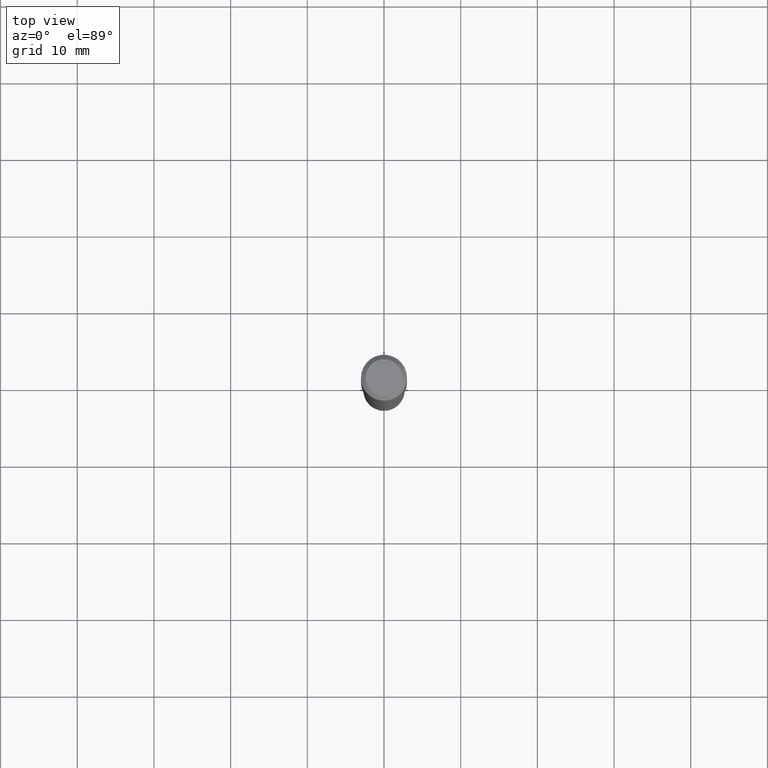
[diagram: clean part render]
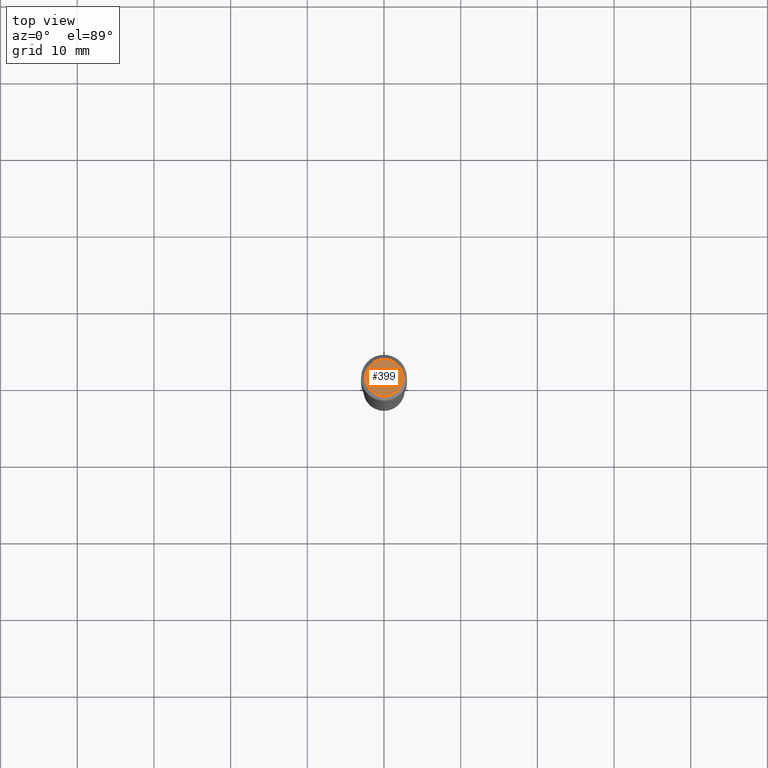
[diagram: same view with one face highlighted and labeled with its STEP entity id]
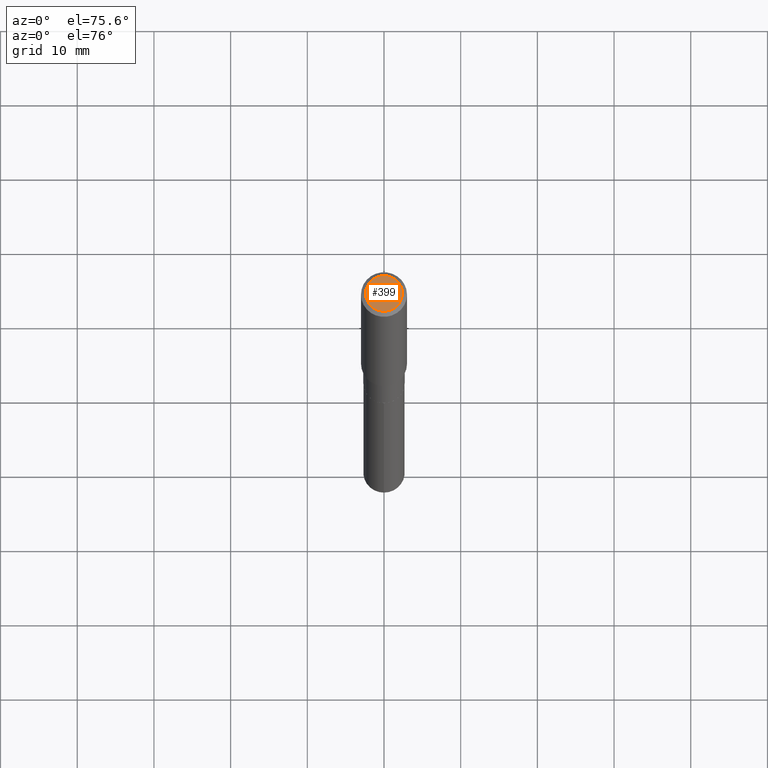
[diagram: same view with one face highlighted and labeled with its STEP entity id]
A machine part, top view. The second image highlights one B-rep face of the part: STEP entity #399.
A second angle (auxiliary view) of the same face is appended — the face is thin or edge-on in the first view.
In plain terms, the highlighted planar face has unit normal (0, -0, -1).
Its self-contained STEP definition (entity closure, byte-faithful):
#15 = VERTEX_POINT ( 'NONE', #51 ) ;
#37 = DIRECTION ( 'NONE',  ( -1.000000000000000000, 6.982962677686265922E-15, -4.876176775795935793E-29 ) ) ;
#51 = CARTESIAN_POINT ( 'NONE',  ( -0.09447999999999998066, 7.009847083995354710E-16, -1.928573779297727792E-17 ) ) ;
#55 = EDGE_LOOP ( 'NONE', ( #383, #353 ) ) ;
#62 = CARTESIAN_POINT ( 'NONE',  ( 0.09447999999999998066, -7.704367267948738690E-16, -1.928573779296752193E-17 ) ) ;
#124 = EDGE_CURVE ( 'NONE', #301, #15, #486, .T. ) ;
#159 = AXIS2_PLACEMENT_3D ( 'NONE', #236, #270, #388 ) ;
#167 = AXIS2_PLACEMENT_3D ( 'NONE', #266, #409, #37 ) ;
#181 = EDGE_CURVE ( 'NONE', #15, #301, #310, .T. ) ;
#202 = DIRECTION ( 'NONE',  ( 1.000000000000000000, -6.982962677686267499E-15, 4.875432709231658792E-29 ) ) ;
#236 = CARTESIAN_POINT ( 'NONE',  ( 4.716267017698007905E-46, -6.733579360998555036E-32, -1.928573779297252010E-17 ) ) ;
#261 = FACE_OUTER_BOUND ( 'NONE', #55, .T. ) ;
#266 = CARTESIAN_POINT ( 'NONE',  ( 2.358133508849003952E-46, -3.366789680499277518E-32, -9.642868896486260050E-18 ) ) ;
#270 = DIRECTION ( 'NONE',  ( -2.445468806185136597E-29, 3.491481338843145583E-15, 1.000000000000000000 ) ) ;
#301 = VERTEX_POINT ( 'NONE', #62 ) ;
#310 = CIRCLE ( 'NONE', #159, 0.09447999999999998066 ) ;
#353 = ORIENTED_EDGE ( 'NONE', *, *, #124, .T. ) ;
#359 = AXIS2_PLACEMENT_3D ( 'NONE', #459, #420, #202 ) ;
#383 = ORIENTED_EDGE ( 'NONE', *, *, #181, .T. ) ;
#388 = DIRECTION ( 'NONE',  ( 1.000000000000000000, -6.982962677686267499E-15, 4.875432709231658792E-29 ) ) ;
#399 = ADVANCED_FACE ( 'NONE', ( #261 ), #490, .F. ) ;
#409 = DIRECTION ( 'NONE',  ( 2.438088387897960049E-29, -3.491481338843145188E-15, -1.000000000000000000 ) ) ;
#420 = DIRECTION ( 'NONE',  ( -2.445468806185136597E-29, 3.491481338843145583E-15, 1.000000000000000000 ) ) ;
#459 = CARTESIAN_POINT ( 'NONE',  ( 4.716267017698007905E-46, -6.733579360998555036E-32, -1.928573779297252010E-17 ) ) ;
#486 = CIRCLE ( 'NONE', #359, 0.09447999999999998066 ) ;
#490 = PLANE ( 'NONE',  #167 ) ;